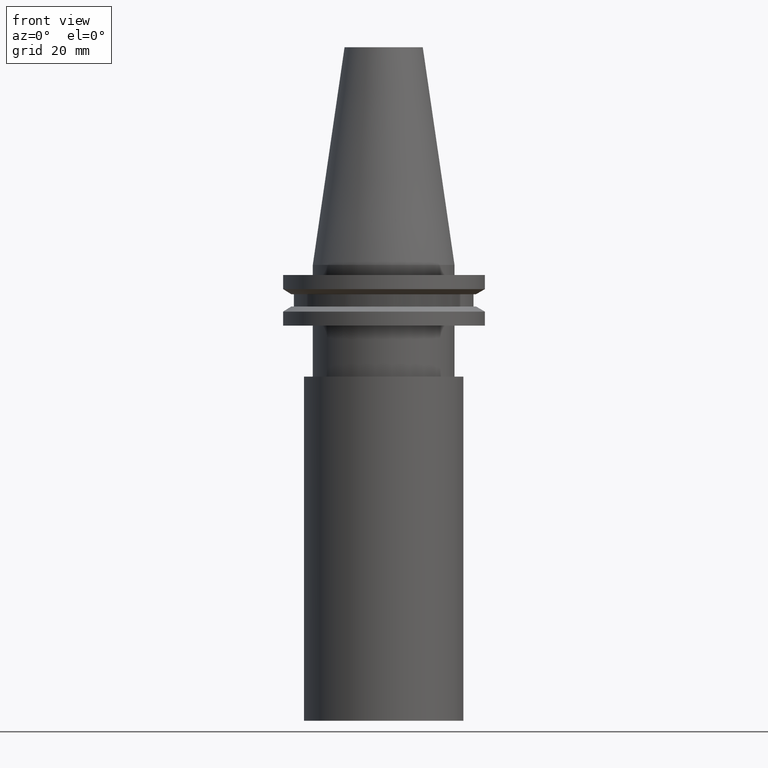
[diagram: clean part render]
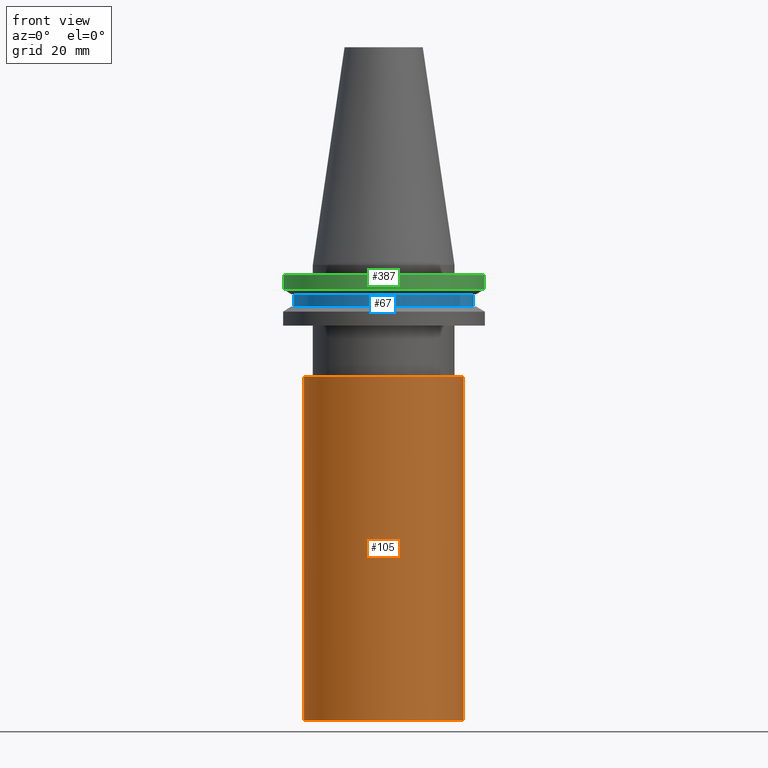
[diagram: same view with three faces highlighted in distinct colors, each labeled with its STEP entity id]
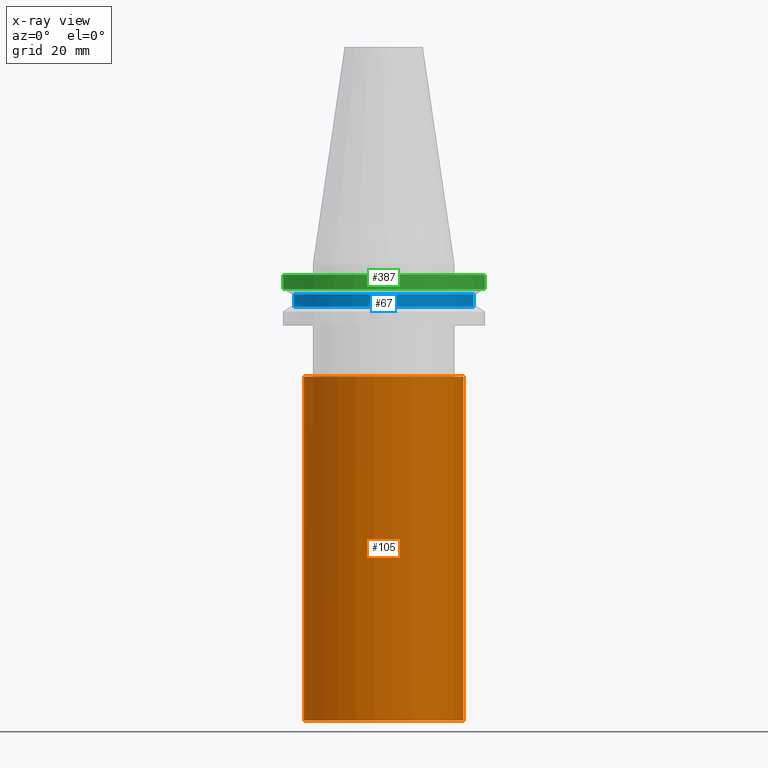
[diagram: x-ray of the same camera — body ghosted, the three highlighted faces saturated]
A machine part, front view with three faces highlighted in distinct colors.
The next image is the same camera in x-ray (body ghosted, the three faces saturated) — at least one of them is partly hidden behind the body in this view.
Their STEP definitions:

[orange] entity #105 — the highlighted cylindrical surface (bore or boss wall) has radius 25 mm, axis along (-0, -0, 1).
#13 = CARTESIAN_POINT ( 'NONE',  ( 25.00000000000000000, 0.000000000000000000, -35.04999999999999716 ) ) ;
#29 = DIRECTION ( 'NONE',  ( -0.000000000000000000, -0.000000000000000000, 1.000000000000000000 ) ) ;
#31 = FACE_OUTER_BOUND ( 'NONE', #391, .T. ) ;
#55 = CYLINDRICAL_SURFACE ( 'NONE', #101, 25.00000000000000000 ) ;
#63 = EDGE_CURVE ( 'NONE', #248, #248, #322, .T. ) ;
#101 = AXIS2_PLACEMENT_3D ( 'NONE', #309, #29, #375 ) ;
#105 = ADVANCED_FACE ( 'NONE', ( #31, #214 ), #55, .T. ) ;
#131 = DIRECTION ( 'NONE',  ( -0.000000000000000000, -0.000000000000000000, 1.000000000000000000 ) ) ;
#140 = AXIS2_PLACEMENT_3D ( 'NONE', #247, #185, #304 ) ;
#169 = EDGE_LOOP ( 'NONE', ( #395 ) ) ;
#185 = DIRECTION ( 'NONE',  ( -0.000000000000000000, -0.000000000000000000, 1.000000000000000000 ) ) ;
#195 = CIRCLE ( 'NONE', #314, 25.00000000000000000 ) ;
#197 = DIRECTION ( 'NONE',  ( 1.000000000000000000, 0.000000000000000000, 0.000000000000000000 ) ) ;
#214 = FACE_OUTER_BOUND ( 'NONE', #169, .T. ) ;
#234 = CARTESIAN_POINT ( 'NONE',  ( 25.00000000000000000, 0.000000000000000000, -143.0000000000000000 ) ) ;
#247 = CARTESIAN_POINT ( 'NONE',  ( 0.000000000000000000, 0.000000000000000000, -143.0000000000000000 ) ) ;
#248 = VERTEX_POINT ( 'NONE', #234 ) ;
#266 = VERTEX_POINT ( 'NONE', #13 ) ;
#278 = EDGE_CURVE ( 'NONE', #266, #266, #195, .T. ) ;
#304 = DIRECTION ( 'NONE',  ( 1.000000000000000000, 0.000000000000000000, 0.000000000000000000 ) ) ;
#309 = CARTESIAN_POINT ( 'NONE',  ( 0.000000000000000000, 0.000000000000000000, 0.000000000000000000 ) ) ;
#314 = AXIS2_PLACEMENT_3D ( 'NONE', #317, #131, #197 ) ;
#317 = CARTESIAN_POINT ( 'NONE',  ( 0.000000000000000000, 0.000000000000000000, -35.04999999999999716 ) ) ;
#322 = CIRCLE ( 'NONE', #140, 25.00000000000000000 ) ;
#334 = ORIENTED_EDGE ( 'NONE', *, *, #278, .F. ) ;
#375 = DIRECTION ( 'NONE',  ( 1.000000000000000000, 0.000000000000000000, 0.000000000000000000 ) ) ;
#391 = EDGE_LOOP ( 'NONE', ( #334 ) ) ;
#395 = ORIENTED_EDGE ( 'NONE', *, *, #63, .T. ) ;

[blue] entity #67 — the highlighted cylindrical surface (bore or boss wall) has radius 28.18 mm, axis along (-0, -0, 1).
#64 = DIRECTION ( 'NONE',  ( 1.000000000000000000, 0.000000000000000000, 0.000000000000000000 ) ) ;
#65 = DIRECTION ( 'NONE',  ( 1.000000000000000000, 0.000000000000000000, 0.000000000000000000 ) ) ;
#67 = ADVANCED_FACE ( 'NONE', ( #115, #249 ), #252, .T. ) ;
#74 = CIRCLE ( 'NONE', #261, 28.17999999999999972 ) ;
#96 = CIRCLE ( 'NONE', #106, 28.17999999999999972 ) ;
#106 = AXIS2_PLACEMENT_3D ( 'NONE', #160, #190, #64 ) ;
#115 = FACE_OUTER_BOUND ( 'NONE', #274, .T. ) ;
#132 = AXIS2_PLACEMENT_3D ( 'NONE', #183, #369, #344 ) ;
#160 = CARTESIAN_POINT ( 'NONE',  ( 0.000000000000000000, 0.000000000000000000, -9.204999999999991189 ) ) ;
#183 = CARTESIAN_POINT ( 'NONE',  ( 0.000000000000000000, 0.000000000000000000, 68.25000000000000000 ) ) ;
#190 = DIRECTION ( 'NONE',  ( -0.000000000000000000, -0.000000000000000000, 1.000000000000000000 ) ) ;
#203 = EDGE_LOOP ( 'NONE', ( #367 ) ) ;
#210 = VERTEX_POINT ( 'NONE', #371 ) ;
#242 = EDGE_CURVE ( 'NONE', #368, #368, #96, .T. ) ;
#249 = FACE_OUTER_BOUND ( 'NONE', #203, .T. ) ;
#252 = CYLINDRICAL_SURFACE ( 'NONE', #132, 28.17999999999999972 ) ;
#261 = AXIS2_PLACEMENT_3D ( 'NONE', #286, #351, #65 ) ;
#274 = EDGE_LOOP ( 'NONE', ( #302 ) ) ;
#286 = CARTESIAN_POINT ( 'NONE',  ( 0.000000000000000000, 0.000000000000000000, -13.05499999999999794 ) ) ;
#293 = CARTESIAN_POINT ( 'NONE',  ( 28.17999999999999972, 0.000000000000000000, -9.204999999999991189 ) ) ;
#302 = ORIENTED_EDGE ( 'NONE', *, *, #242, .F. ) ;
#344 = DIRECTION ( 'NONE',  ( 1.000000000000000000, 0.000000000000000000, 0.000000000000000000 ) ) ;
#351 = DIRECTION ( 'NONE',  ( -0.000000000000000000, -0.000000000000000000, 1.000000000000000000 ) ) ;
#357 = EDGE_CURVE ( 'NONE', #210, #210, #74, .T. ) ;
#367 = ORIENTED_EDGE ( 'NONE', *, *, #357, .T. ) ;
#368 = VERTEX_POINT ( 'NONE', #293 ) ;
#369 = DIRECTION ( 'NONE',  ( -0.000000000000000000, -0.000000000000000000, 1.000000000000000000 ) ) ;
#371 = CARTESIAN_POINT ( 'NONE',  ( 28.17999999999999972, 0.000000000000000000, -13.05499999999999794 ) ) ;

[green] entity #387 — the highlighted cylindrical surface (bore or boss wall) has radius 31.75 mm, axis along (-0, -0, 1).
#12 = AXIS2_PLACEMENT_3D ( 'NONE', #165, #326, #386 ) ;
#15 = EDGE_LOOP ( 'NONE', ( #359 ) ) ;
#37 = EDGE_CURVE ( 'NONE', #144, #144, #312, .T. ) ;
#50 = CARTESIAN_POINT ( 'NONE',  ( 0.000000000000000000, 0.000000000000000000, -3.174999999999997158 ) ) ;
#82 = DIRECTION ( 'NONE',  ( -0.000000000000000000, -0.000000000000000000, 1.000000000000000000 ) ) ;
#87 = FACE_OUTER_BOUND ( 'NONE', #15, .T. ) ;
#109 = CARTESIAN_POINT ( 'NONE',  ( 31.75000000000000000, 0.000000000000000000, -3.174999999999997158 ) ) ;
#126 = AXIS2_PLACEMENT_3D ( 'NONE', #50, #397, #306 ) ;
#141 = AXIS2_PLACEMENT_3D ( 'NONE', #246, #82, #365 ) ;
#144 = VERTEX_POINT ( 'NONE', #109 ) ;
#150 = CYLINDRICAL_SURFACE ( 'NONE', #141, 31.75000000000000000 ) ;
#165 = CARTESIAN_POINT ( 'NONE',  ( 0.000000000000000000, 0.000000000000000000, -7.605276606597335842 ) ) ;
#240 = FACE_OUTER_BOUND ( 'NONE', #272, .T. ) ;
#243 = CIRCLE ( 'NONE', #12, 31.75000000000000000 ) ;
#246 = CARTESIAN_POINT ( 'NONE',  ( 0.000000000000000000, 0.000000000000000000, 68.25000000000000000 ) ) ;
#272 = EDGE_LOOP ( 'NONE', ( #330 ) ) ;
#295 = EDGE_CURVE ( 'NONE', #335, #335, #243, .T. ) ;
#306 = DIRECTION ( 'NONE',  ( 1.000000000000000000, 0.000000000000000000, 0.000000000000000000 ) ) ;
#312 = CIRCLE ( 'NONE', #126, 31.75000000000000000 ) ;
#326 = DIRECTION ( 'NONE',  ( -0.000000000000000000, -0.000000000000000000, 1.000000000000000000 ) ) ;
#330 = ORIENTED_EDGE ( 'NONE', *, *, #295, .T. ) ;
#335 = VERTEX_POINT ( 'NONE', #388 ) ;
#359 = ORIENTED_EDGE ( 'NONE', *, *, #37, .F. ) ;
#365 = DIRECTION ( 'NONE',  ( 1.000000000000000000, 0.000000000000000000, 0.000000000000000000 ) ) ;
#386 = DIRECTION ( 'NONE',  ( 1.000000000000000000, 0.000000000000000000, 0.000000000000000000 ) ) ;
#387 = ADVANCED_FACE ( 'NONE', ( #87, #240 ), #150, .T. ) ;
#388 = CARTESIAN_POINT ( 'NONE',  ( 31.75000000000000000, 0.000000000000000000, -7.605276606597335842 ) ) ;
#397 = DIRECTION ( 'NONE',  ( -0.000000000000000000, -0.000000000000000000, 1.000000000000000000 ) ) ;